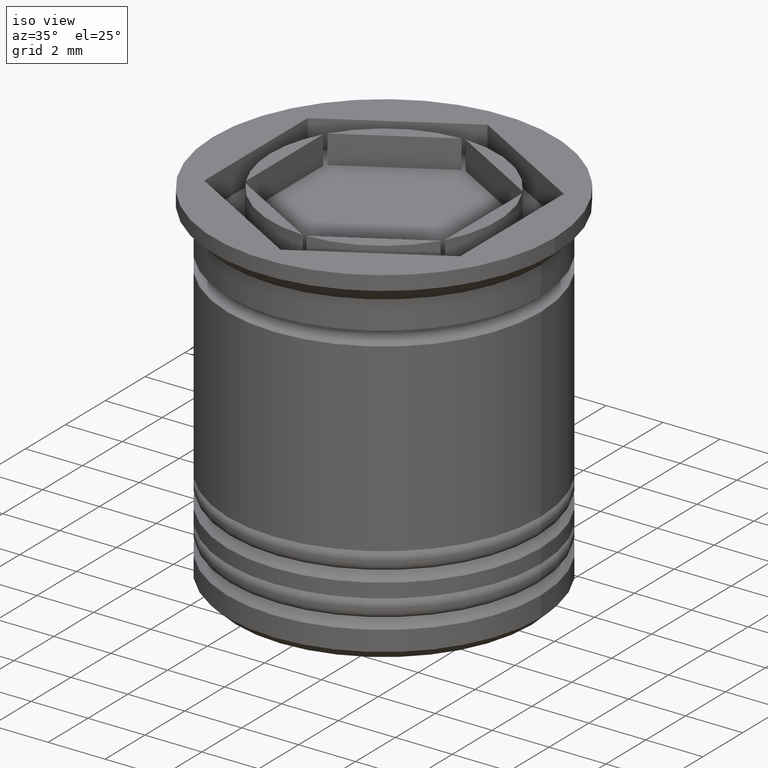
[diagram: clean part render]
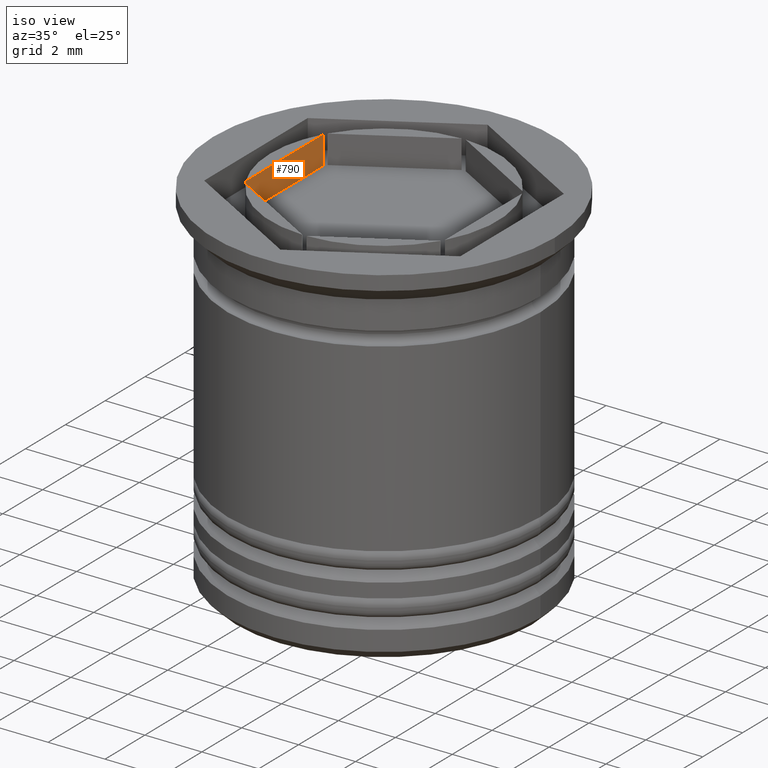
[diagram: same view with one face highlighted and labeled with its STEP entity id]
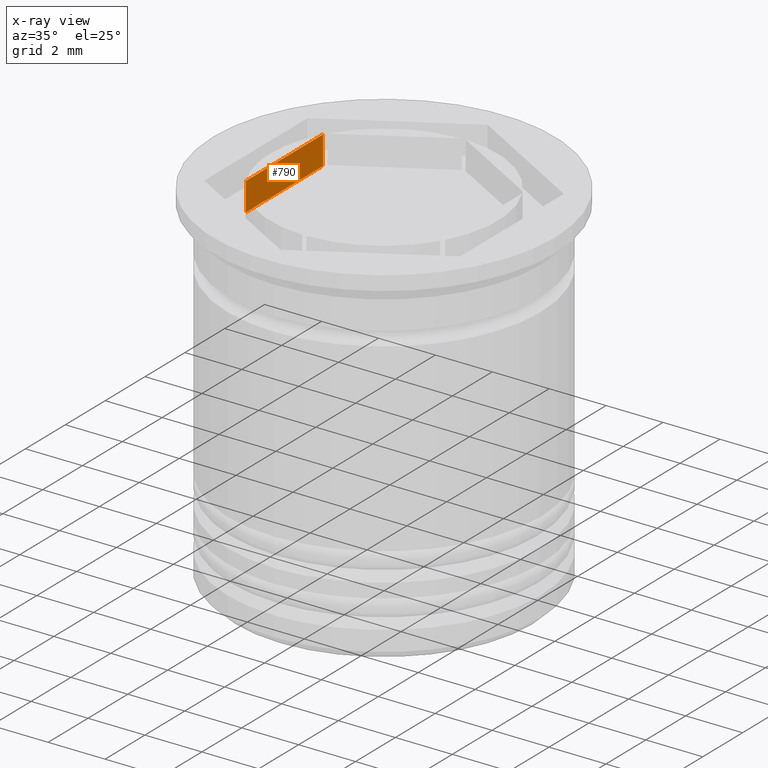
[diagram: x-ray of the same camera — body ghosted, the highlighted face saturated]
A machine part, iso view. The second image highlights one B-rep face of the part: STEP entity #790.
The next image is the same camera in x-ray: the body ghosted, the highlighted face saturated — about 0% of this face is hidden behind the body in this view.
In plain terms, the highlighted planar face has unit normal (-1, 0, -0).
Its self-contained STEP definition (entity closure, byte-faithful):
#145 = VERTEX_POINT ( 'NONE', #635 ) ;
#237 = LINE ( 'NONE', #508, #1040 ) ;
#287 = CARTESIAN_POINT ( 'NONE',  ( -3.499999999999999556, 1.936491673103708955, 11.31370849898475761 ) ) ;
#329 = CARTESIAN_POINT ( 'NONE',  ( -3.499999999999999556, 2.020725942163689837, -1.000000000000000888 ) ) ;
#421 = FACE_OUTER_BOUND ( 'NONE', #1254, .T. ) ;
#445 = DIRECTION ( 'NONE',  ( -0.000000000000000000, -0.000000000000000000, -1.000000000000000000 ) ) ;
#473 = LINE ( 'NONE', #287, #1556 ) ;
#508 = CARTESIAN_POINT ( 'NONE',  ( -3.499999999999999556, 0.000000000000000000, 0.000000000000000000 ) ) ;
#533 = EDGE_CURVE ( 'NONE', #145, #1740, #473, .T. ) ;
#578 = DIRECTION ( 'NONE',  ( -1.000000000000000000, 0.000000000000000000, -0.000000000000000000 ) ) ;
#611 = ORIENTED_EDGE ( 'NONE', *, *, #1649, .T. ) ;
#635 = CARTESIAN_POINT ( 'NONE',  ( -3.499999999999999556, 1.936491673103708955, 0.000000000000000000 ) ) ;
#707 = CARTESIAN_POINT ( 'NONE',  ( -3.499999999999999556, -1.936491673103708955, 11.31370849898475761 ) ) ;
#714 = DIRECTION ( 'NONE',  ( 0.000000000000000000, 0.000000000000000000, 1.000000000000000000 ) ) ;
#790 = ADVANCED_FACE ( 'NONE', ( #421 ), #1933, .F. ) ;
#824 = DIRECTION ( 'NONE',  ( 0.000000000000000000, -1.000000000000000000, 0.000000000000000000 ) ) ;
#997 = CARTESIAN_POINT ( 'NONE',  ( -3.499999999999999556, -1.936491673103708955, 0.000000000000000000 ) ) ;
#1040 = VECTOR ( 'NONE', #824, 1000.000000000000000 ) ;
#1042 = CARTESIAN_POINT ( 'NONE',  ( -3.499999999999999556, 2.020725942163689837, -11.69267662156362597 ) ) ;
#1050 = LINE ( 'NONE', #707, #1668 ) ;
#1119 = ORIENTED_EDGE ( 'NONE', *, *, #533, .F. ) ;
#1204 = ORIENTED_EDGE ( 'NONE', *, *, #1375, .T. ) ;
#1205 = AXIS2_PLACEMENT_3D ( 'NONE', #1042, #578, #1478 ) ;
#1215 = VERTEX_POINT ( 'NONE', #1389 ) ;
#1254 = EDGE_LOOP ( 'NONE', ( #1204, #1914, #611, #1119 ) ) ;
#1375 = EDGE_CURVE ( 'NONE', #145, #1380, #237, .T. ) ;
#1380 = VERTEX_POINT ( 'NONE', #997 ) ;
#1389 = CARTESIAN_POINT ( 'NONE',  ( -3.499999999999999556, -1.936491673103708955, -1.000000000000000888 ) ) ;
#1403 = DIRECTION ( 'NONE',  ( 0.000000000000000000, 1.000000000000000000, 0.000000000000000000 ) ) ;
#1478 = DIRECTION ( 'NONE',  ( -0.000000000000000000, 0.000000000000000000, 1.000000000000000000 ) ) ;
#1531 = CARTESIAN_POINT ( 'NONE',  ( -3.499999999999999556, 1.936491673103708955, -1.000000000000000888 ) ) ;
#1556 = VECTOR ( 'NONE', #445, 1000.000000000000000 ) ;
#1649 = EDGE_CURVE ( 'NONE', #1215, #1740, #1868, .T. ) ;
#1668 = VECTOR ( 'NONE', #714, 1000.000000000000000 ) ;
#1740 = VERTEX_POINT ( 'NONE', #1531 ) ;
#1868 = LINE ( 'NONE', #329, #1890 ) ;
#1890 = VECTOR ( 'NONE', #1403, 1000.000000000000000 ) ;
#1914 = ORIENTED_EDGE ( 'NONE', *, *, #1971, .F. ) ;
#1933 = PLANE ( 'NONE',  #1205 ) ;
#1971 = EDGE_CURVE ( 'NONE', #1215, #1380, #1050, .T. ) ;